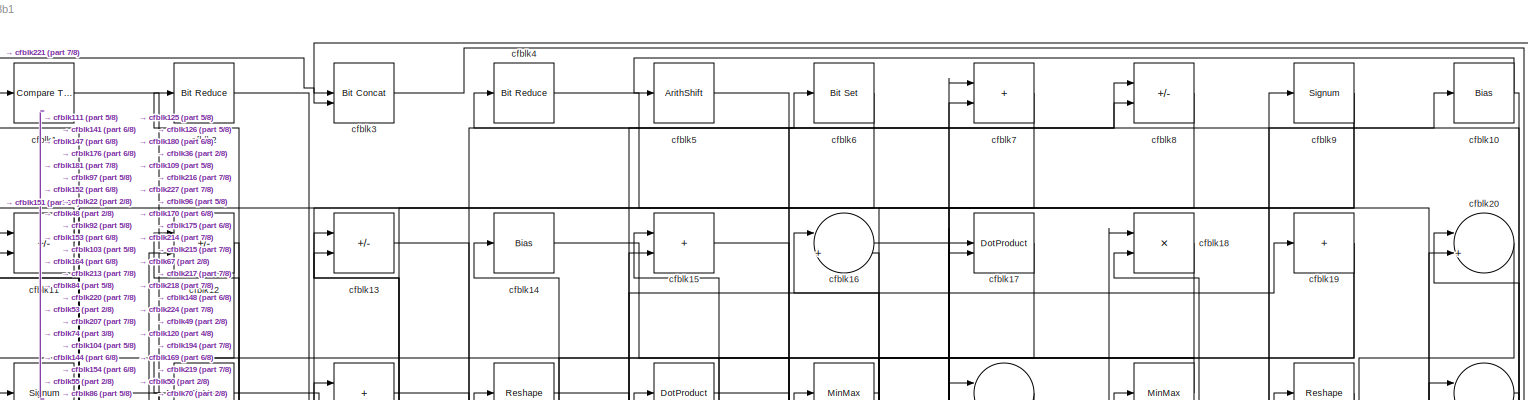
[diagram: root canvas - part 1/8, full width, top band]
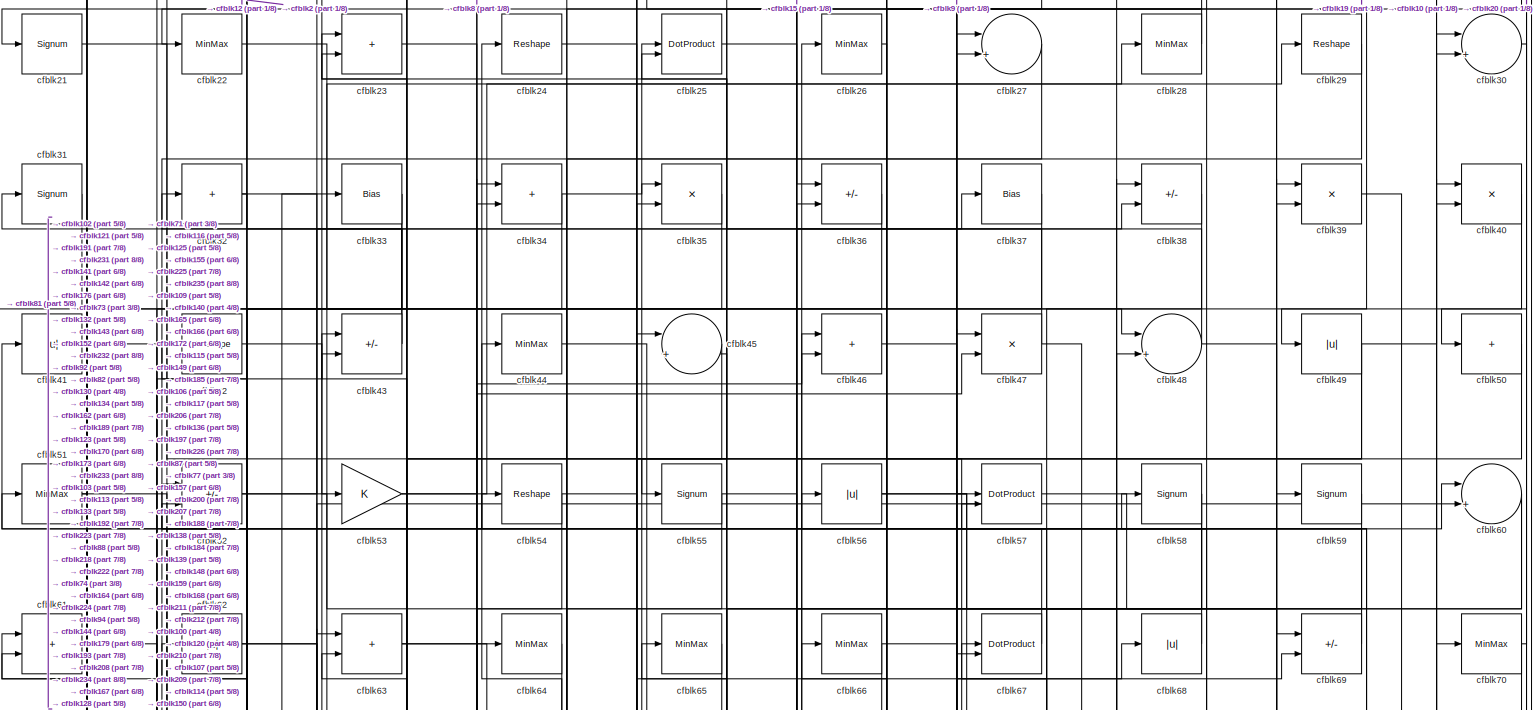
[diagram: root canvas - part 2/8, full width, top band]
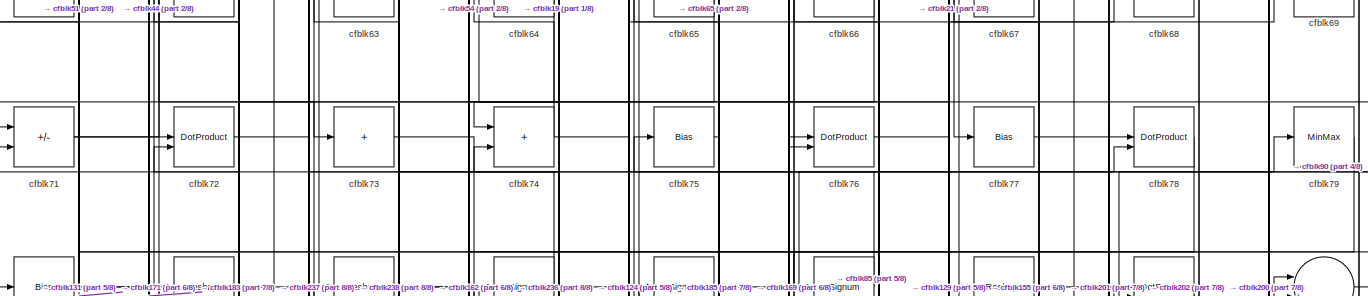
[diagram: root canvas - part 3/8, full width, top band]
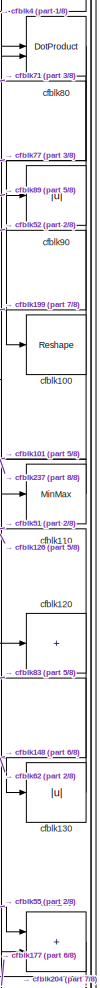
[diagram: root canvas - part 4/8, middle right region]
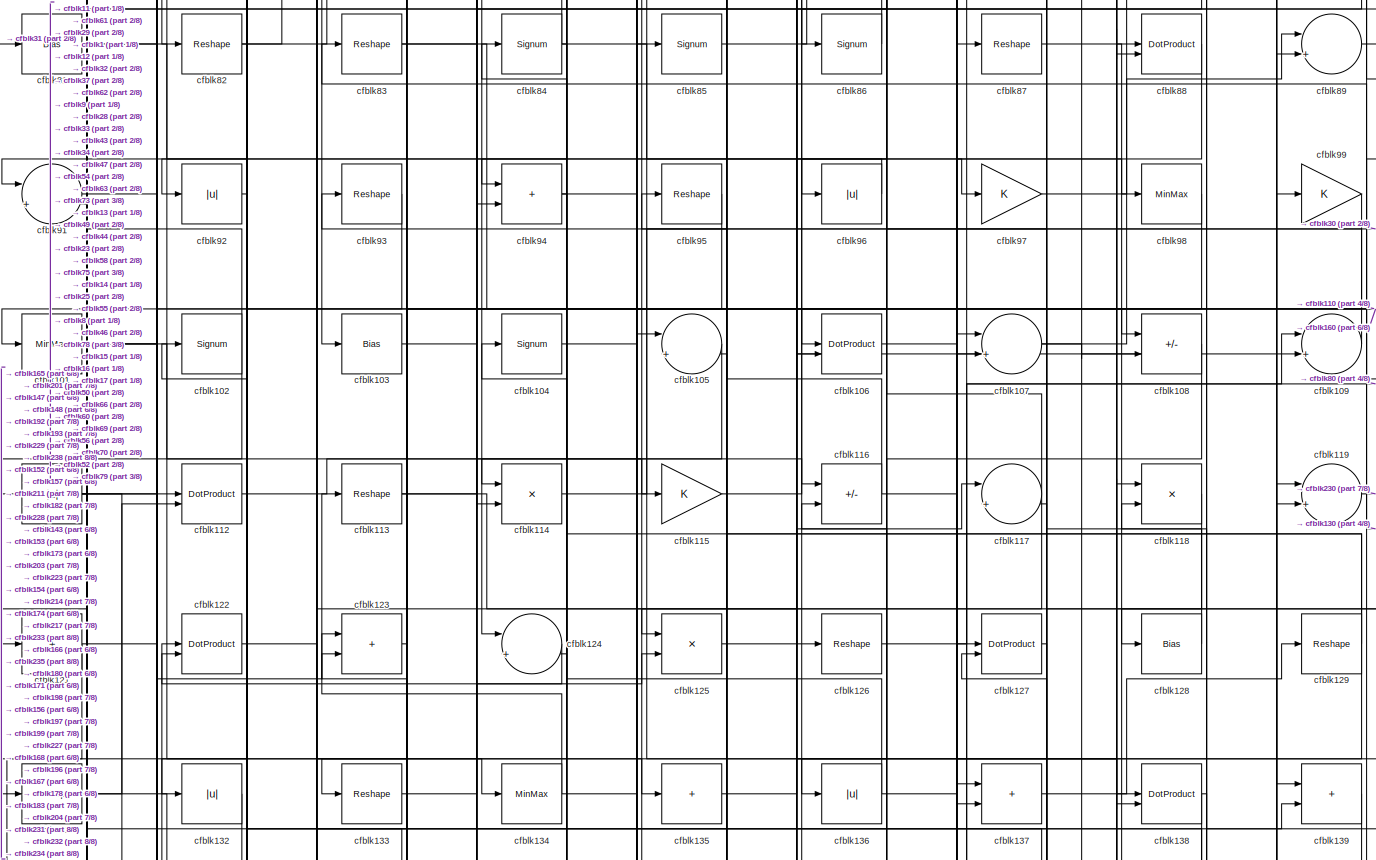
[diagram: root canvas - part 5/8, full width, middle band]
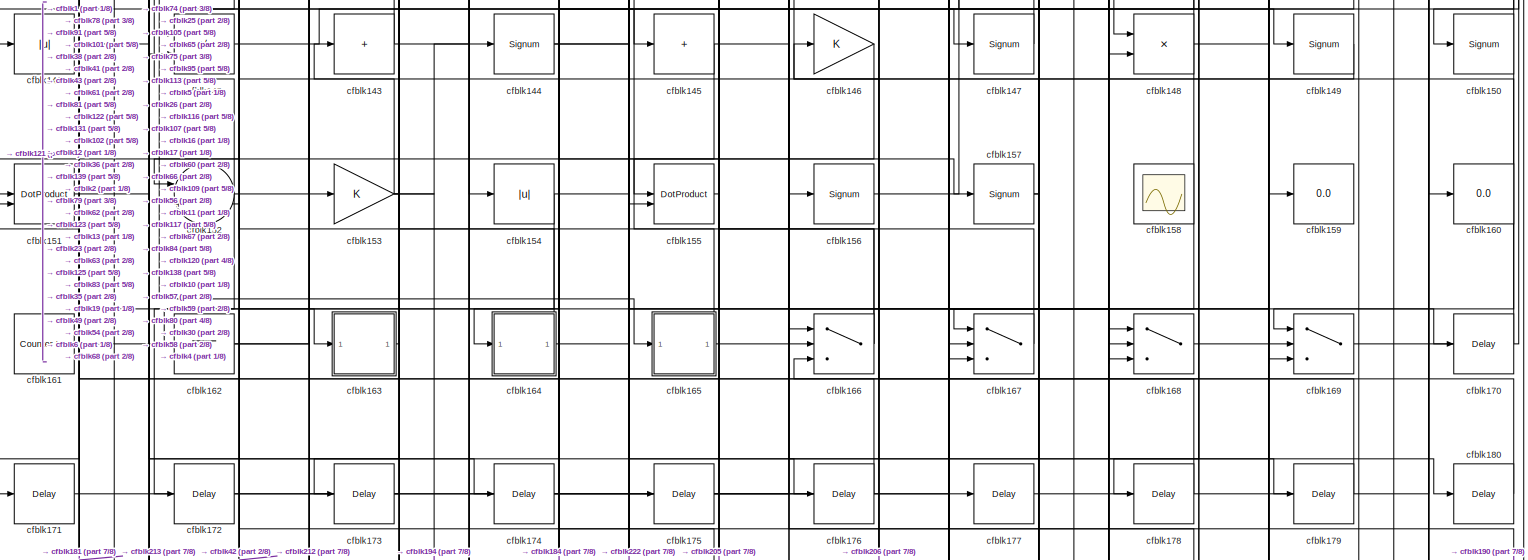
[diagram: root canvas - part 6/8, full width, bottom band]
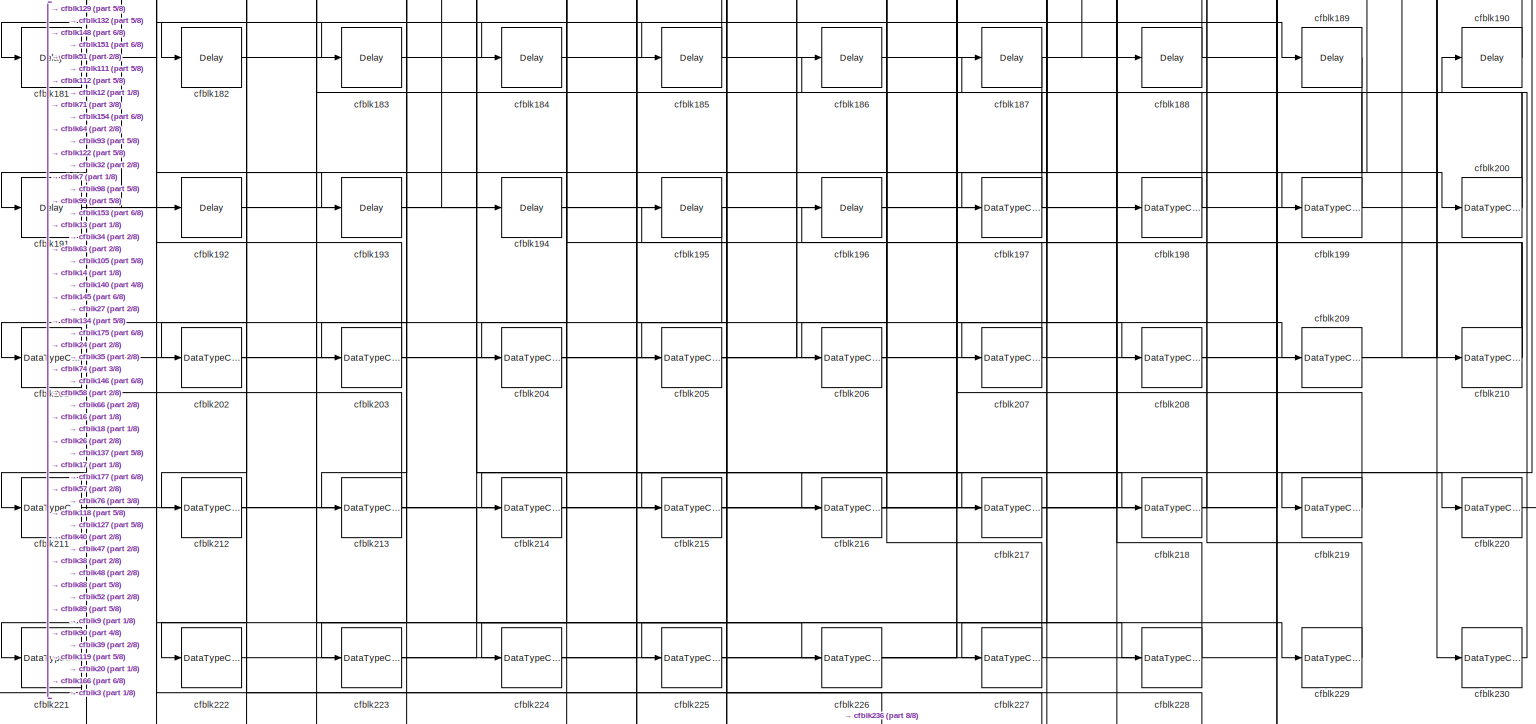
[diagram: root canvas - part 7/8, full width, bottom band]
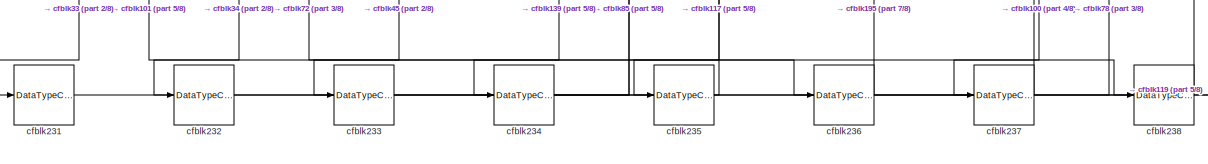
[diagram: root canvas - part 8/8, full width, bottom band]
MODEL slx_3759652f13b1
KIND model
CONFIG AbsTol = auto
CONFIG EnableMultiTasking = off
CONFIG FixedStep = auto
CONFIG MaxStep = auto
CONFIG MinStep = auto
CONFIG RelTol = 1e-3
CONFIG SampleTimeConstraint = Unconstrained
CONFIG SolverName = VariableStepAuto
CONFIG StartTime = 0.0
CONFIG StopTime = 10.0
BLOCK [Reference] cfblk1  REF=hdlsllib/Logic and Bit
Operations/Compare
To Constant
  SourceBlock = hdlsllib/Logic and Bit\nOperations/Compare\nTo Constant
  SourceType = Compare To Constant
BLOCK [Bias] cfblk10
  Bias = 0.0
  SaturateOnIntegerOverflow = off
BLOCK [Reshape] cfblk100
BLOCK [MinMax] cfblk101
BLOCK [Signum] cfblk102
BLOCK [Bias] cfblk103
  Bias = 0.0
  SaturateOnIntegerOverflow = off
BLOCK [Signum] cfblk104
BLOCK [Sum] cfblk105
  Inputs = |++
BLOCK [DotProduct] cfblk106
  OutDataTypeStr = Inherit: Inherit via internal rule
BLOCK [Sum] cfblk107
  Inputs = |++
BLOCK [Sum] cfblk108
  IconShape = rectangular
  Inputs = +-
BLOCK [Sum] cfblk109
  Inputs = |++
BLOCK [Sum] cfblk11
  IconShape = rectangular
  Inputs = +-
BLOCK [MinMax] cfblk110
BLOCK [Abs] cfblk111
  SaturateOnIntegerOverflow = off
BLOCK [DotProduct] cfblk112
  OutDataTypeStr = Inherit: Inherit via internal rule
BLOCK [Reshape] cfblk113
BLOCK [Product] cfblk114
  Inputs = */
  RndMeth = Zero
  SaturateOnIntegerOverflow = on
BLOCK [Gain] cfblk115
BLOCK [Sum] cfblk116
  IconShape = rectangular
  Inputs = +-
BLOCK [Sum] cfblk117
  Inputs = |++
BLOCK [Product] cfblk118
  Inputs = */
  RndMeth = Zero
  SaturateOnIntegerOverflow = on
BLOCK [Sum] cfblk119
  Inputs = |++
BLOCK [Sum] cfblk12
  IconShape = rectangular
  Inputs = +-
BLOCK [Sum] cfblk120
  IconShape = rectangular
  Inputs = +
BLOCK [Sum] cfblk121
  IconShape = rectangular
  Inputs = +
BLOCK [DotProduct] cfblk122
  OutDataTypeStr = Inherit: Inherit via internal rule
BLOCK [Sum] cfblk123
  IconShape = rectangular
BLOCK [Sum] cfblk124
  Inputs = |++
BLOCK [Product] cfblk125
  Inputs = */
  RndMeth = Zero
  SaturateOnIntegerOverflow = on
BLOCK [Reshape] cfblk126
BLOCK [DotProduct] cfblk127
  OutDataTypeStr = Inherit: Inherit via internal rule
BLOCK [Bias] cfblk128
  Bias = 0.0
  SaturateOnIntegerOverflow = off
BLOCK [Reshape] cfblk129
BLOCK [Sum] cfblk13
  IconShape = rectangular
  Inputs = +-
BLOCK [Abs] cfblk130
  SaturateOnIntegerOverflow = off
BLOCK [Reshape] cfblk131
BLOCK [Abs] cfblk132
  SaturateOnIntegerOverflow = off
BLOCK [Reshape] cfblk133
BLOCK [MinMax] cfblk134
BLOCK [Sum] cfblk135
  IconShape = rectangular
  Inputs = +
BLOCK [Abs] cfblk136
  SaturateOnIntegerOverflow = off
BLOCK [Sum] cfblk137
  IconShape = rectangular
BLOCK [DotProduct] cfblk138
  OutDataTypeStr = Inherit: Inherit via internal rule
BLOCK [Sum] cfblk139
  IconShape = rectangular
BLOCK [Bias] cfblk14
  Bias = 0.0
  SaturateOnIntegerOverflow = off
BLOCK [Sum] cfblk140
  IconShape = rectangular
BLOCK [Abs] cfblk141
  SaturateOnIntegerOverflow = off
BLOCK [Sum] cfblk142
  IconShape = rectangular
  Inputs = +-
BLOCK [Sum] cfblk143
  IconShape = rectangular
  Inputs = +
BLOCK [Signum] cfblk144
BLOCK [Sum] cfblk145
  IconShape = rectangular
  Inputs = +
BLOCK [Gain] cfblk146
BLOCK [Signum] cfblk147
BLOCK [Product] cfblk148
  Inputs = */
  RndMeth = Zero
  SaturateOnIntegerOverflow = on
BLOCK [Signum] cfblk149
BLOCK [Sum] cfblk15
  IconShape = rectangular
BLOCK [Signum] cfblk150
BLOCK [DotProduct] cfblk151
  OutDataTypeStr = Inherit: Inherit via internal rule
BLOCK [Sum] cfblk152
  Inputs = |++
BLOCK [Gain] cfblk153
BLOCK [Abs] cfblk154
  SaturateOnIntegerOverflow = off
BLOCK [DotProduct] cfblk155
  OutDataTypeStr = Inherit: Inherit via internal rule
BLOCK [Signum] cfblk156
BLOCK [Signum] cfblk157
BLOCK [Scope] cfblk158
  Floating = on
  NumInputPorts = 1
  ScopeSpecificationString = Simulink.scopes.TimeScopeBlockCfg('CurrentConfiguration', extmgr.ConfigurationSet(extmgr.Configuration('Core','General UI',true,'FigureColor',[0.156862745098039 0.156862745098039 0.156862745098039]),extmgr.Configuration('Core','Source UI',true),extmgr.Configuration('Sources','WiredSimulink',true,'DataLoggingVariableName','ScopeData1','DataLoggingSaveFormat','StructureWithTime','DataLoggingLimitDat...<+2713ch>
BLOCK [Display] cfblk159
  Decimation = 1
BLOCK [Sum] cfblk16
  Inputs = |++
BLOCK [Display] cfblk160
  Decimation = 1
BLOCK [Reference] cfblk161  REF=hdlsllib/Sources/Counter
Limited
  SourceBlock = hdlsllib/Sources/Counter\nLimited
  SourceType = Counter Limited
BLOCK [Ground] cfblk162
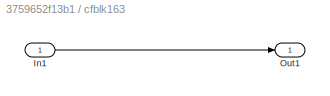
BLOCK [SubSystem] cfblk163
  LibrarySourceBlock = hdlsllib/Ports &\nSubsystems/Subsystem
BLOCK [Inport] cfblk163/In1
BLOCK [Outport] cfblk163/Out1
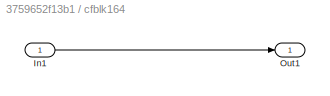
BLOCK [SubSystem] cfblk164
  LibrarySourceBlock = hdlsllib/Ports &\nSubsystems/Subsystem
BLOCK [Inport] cfblk164/In1
BLOCK [Outport] cfblk164/Out1
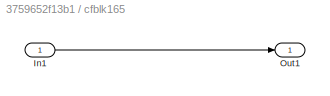
BLOCK [SubSystem] cfblk165
  LibrarySourceBlock = hdlsllib/Ports &\nSubsystems/Subsystem
BLOCK [Inport] cfblk165/In1
BLOCK [Outport] cfblk165/Out1
BLOCK [Switch] cfblk166
  InputSameDT = off
  SaturateOnIntegerOverflow = off
BLOCK [Switch] cfblk167
  InputSameDT = off
  SaturateOnIntegerOverflow = off
BLOCK [Switch] cfblk168
  InputSameDT = off
  SaturateOnIntegerOverflow = off
BLOCK [Switch] cfblk169
  InputSameDT = off
  SaturateOnIntegerOverflow = off
BLOCK [DotProduct] cfblk17
  OutDataTypeStr = Inherit: Inherit via internal rule
BLOCK [Delay] cfblk170
  InputPortMap = u0
  SampleTime = 1
BLOCK [Delay] cfblk171
  InputPortMap = u0
  SampleTime = 1
BLOCK [Delay] cfblk172
  InputPortMap = u0
  SampleTime = 1
BLOCK [Delay] cfblk173
  InputPortMap = u0
  SampleTime = 1
BLOCK [Delay] cfblk174
  InputPortMap = u0
  SampleTime = 1
BLOCK [Delay] cfblk175
  InputPortMap = u0
  SampleTime = 1
BLOCK [Delay] cfblk176
  InputPortMap = u0
  SampleTime = 1
BLOCK [Delay] cfblk177
  InputPortMap = u0
  SampleTime = 1
BLOCK [Delay] cfblk178
  InputPortMap = u0
  SampleTime = 1
BLOCK [Delay] cfblk179
  InputPortMap = u0
  SampleTime = 1
BLOCK [Product] cfblk18
  Inputs = */
  RndMeth = Zero
  SaturateOnIntegerOverflow = on
BLOCK [Delay] cfblk180
  InputPortMap = u0
  SampleTime = 1
BLOCK [Delay] cfblk181
  InputPortMap = u0
  SampleTime = 1
BLOCK [Delay] cfblk182
  InputPortMap = u0
  SampleTime = 1
BLOCK [Delay] cfblk183
  InputPortMap = u0
  SampleTime = 1
BLOCK [Delay] cfblk184
  InputPortMap = u0
  SampleTime = 1
BLOCK [Delay] cfblk185
  InputPortMap = u0
  SampleTime = 1
BLOCK [Delay] cfblk186
  InputPortMap = u0
  SampleTime = 1
BLOCK [Delay] cfblk187
  InputPortMap = u0
  SampleTime = 1
BLOCK [Delay] cfblk188
  InputPortMap = u0
  SampleTime = 1
BLOCK [Delay] cfblk189
  InputPortMap = u0
  SampleTime = 1
BLOCK [Sum] cfblk19
  IconShape = rectangular
  Inputs = +
BLOCK [Delay] cfblk190
  InputPortMap = u0
  SampleTime = 1
BLOCK [Delay] cfblk191
  InputPortMap = u0
  SampleTime = 1
BLOCK [Delay] cfblk192
  InputPortMap = u0
  SampleTime = 1
BLOCK [Delay] cfblk193
  InputPortMap = u0
  SampleTime = 1
BLOCK [Delay] cfblk194
  InputPortMap = u0
  SampleTime = 1
BLOCK [Delay] cfblk195
  InputPortMap = u0
  SampleTime = 1
BLOCK [Delay] cfblk196
  InputPortMap = u0
  SampleTime = 1
BLOCK [DataTypeConversion] cfblk197
  OutDataTypeStr = uint8
  RndMeth = Floor
  SaturateOnIntegerOverflow = off
BLOCK [DataTypeConversion] cfblk198
  OutDataTypeStr = uint8
  RndMeth = Floor
  SaturateOnIntegerOverflow = off
BLOCK [DataTypeConversion] cfblk199
  OutDataTypeStr = uint8
  RndMeth = Floor
  SaturateOnIntegerOverflow = off
BLOCK [Reference] cfblk2  REF=hdlsllib/Logic and Bit
Operations/Bit Reduce
  SourceBlock = hdlsllib/Logic and Bit\nOperations/Bit Reduce
  SourceType = Bit Reduce
BLOCK [Sum] cfblk20
  Inputs = |++
BLOCK [DataTypeConversion] cfblk200
  RndMeth = Floor
  SaturateOnIntegerOverflow = off
BLOCK [DataTypeConversion] cfblk201
  OutDataTypeStr = uint8
  RndMeth = Floor
  SaturateOnIntegerOverflow = off
BLOCK [DataTypeConversion] cfblk202
  OutDataTypeStr = uint8
  RndMeth = Floor
  SaturateOnIntegerOverflow = off
BLOCK [DataTypeConversion] cfblk203
  OutDataTypeStr = uint8
  RndMeth = Floor
  SaturateOnIntegerOverflow = off
BLOCK [DataTypeConversion] cfblk204
  OutDataTypeStr = uint8
  RndMeth = Floor
  SaturateOnIntegerOverflow = off
BLOCK [DataTypeConversion] cfblk205
  OutDataTypeStr = uint8
  RndMeth = Floor
  SaturateOnIntegerOverflow = off
BLOCK [DataTypeConversion] cfblk206
  OutDataTypeStr = uint8
  RndMeth = Floor
  SaturateOnIntegerOverflow = off
BLOCK [DataTypeConversion] cfblk207
  OutDataTypeStr = uint8
  RndMeth = Floor
  SaturateOnIntegerOverflow = off
BLOCK [DataTypeConversion] cfblk208
  OutDataTypeStr = uint8
  RndMeth = Floor
  SaturateOnIntegerOverflow = off
BLOCK [DataTypeConversion] cfblk209
  OutDataTypeStr = uint8
  RndMeth = Floor
  SaturateOnIntegerOverflow = off
BLOCK [Signum] cfblk21
BLOCK [DataTypeConversion] cfblk210
  RndMeth = Floor
  SaturateOnIntegerOverflow = off
BLOCK [DataTypeConversion] cfblk211
  OutDataTypeStr = uint8
  RndMeth = Floor
  SaturateOnIntegerOverflow = off
BLOCK [DataTypeConversion] cfblk212
  OutDataTypeStr = uint8
  RndMeth = Floor
  SaturateOnIntegerOverflow = off
BLOCK [DataTypeConversion] cfblk213
  RndMeth = Floor
  SaturateOnIntegerOverflow = off
BLOCK [DataTypeConversion] cfblk214
  OutDataTypeStr = uint8
  RndMeth = Floor
  SaturateOnIntegerOverflow = off
BLOCK [DataTypeConversion] cfblk215
  OutDataTypeStr = uint8
  RndMeth = Floor
  SaturateOnIntegerOverflow = off
BLOCK [DataTypeConversion] cfblk216
  RndMeth = Floor
  SaturateOnIntegerOverflow = off
BLOCK [DataTypeConversion] cfblk217
  OutDataTypeStr = uint8
  RndMeth = Floor
  SaturateOnIntegerOverflow = off
BLOCK [DataTypeConversion] cfblk218
  OutDataTypeStr = uint8
  RndMeth = Floor
  SaturateOnIntegerOverflow = off
BLOCK [DataTypeConversion] cfblk219
  OutDataTypeStr = uint8
  RndMeth = Floor
  SaturateOnIntegerOverflow = off
BLOCK [MinMax] cfblk22
BLOCK [DataTypeConversion] cfblk220
  OutDataTypeStr = uint8
  RndMeth = Floor
  SaturateOnIntegerOverflow = off
BLOCK [DataTypeConversion] cfblk221
  OutDataTypeStr = uint8
  RndMeth = Floor
  SaturateOnIntegerOverflow = off
BLOCK [DataTypeConversion] cfblk222
  OutDataTypeStr = uint8
  RndMeth = Floor
  SaturateOnIntegerOverflow = off
BLOCK [DataTypeConversion] cfblk223
  OutDataTypeStr = uint8
  RndMeth = Floor
  SaturateOnIntegerOverflow = off
BLOCK [DataTypeConversion] cfblk224
  OutDataTypeStr = uint8
  RndMeth = Floor
  SaturateOnIntegerOverflow = off
BLOCK [DataTypeConversion] cfblk225
  OutDataTypeStr = uint8
  RndMeth = Floor
  SaturateOnIntegerOverflow = off
BLOCK [DataTypeConversion] cfblk226
  OutDataTypeStr = uint8
  RndMeth = Floor
  SaturateOnIntegerOverflow = off
BLOCK [DataTypeConversion] cfblk227
  OutDataTypeStr = uint8
  RndMeth = Floor
  SaturateOnIntegerOverflow = off
BLOCK [DataTypeConversion] cfblk228
  OutDataTypeStr = uint8
  RndMeth = Floor
  SaturateOnIntegerOverflow = off
BLOCK [DataTypeConversion] cfblk229
  OutDataTypeStr = uint8
  RndMeth = Floor
  SaturateOnIntegerOverflow = off
BLOCK [Sum] cfblk23
  IconShape = rectangular
BLOCK [DataTypeConversion] cfblk230
  OutDataTypeStr = uint8
  RndMeth = Floor
  SaturateOnIntegerOverflow = off
BLOCK [DataTypeConversion] cfblk231
  OutDataTypeStr = uint8
  RndMeth = Floor
  SaturateOnIntegerOverflow = off
BLOCK [DataTypeConversion] cfblk232
  OutDataTypeStr = uint8
  RndMeth = Floor
  SaturateOnIntegerOverflow = off
BLOCK [DataTypeConversion] cfblk233
  OutDataTypeStr = uint8
  RndMeth = Floor
  SaturateOnIntegerOverflow = off
BLOCK [DataTypeConversion] cfblk234
  OutDataTypeStr = uint8
  RndMeth = Floor
  SaturateOnIntegerOverflow = off
BLOCK [DataTypeConversion] cfblk235
  OutDataTypeStr = uint8
  RndMeth = Floor
  SaturateOnIntegerOverflow = off
BLOCK [DataTypeConversion] cfblk236
  RndMeth = Floor
  SaturateOnIntegerOverflow = off
BLOCK [DataTypeConversion] cfblk237
  OutDataTypeStr = uint8
  RndMeth = Floor
  SaturateOnIntegerOverflow = off
BLOCK [DataTypeConversion] cfblk238
  OutDataTypeStr = uint8
  RndMeth = Floor
  SaturateOnIntegerOverflow = off
BLOCK [Reshape] cfblk24
BLOCK [DotProduct] cfblk25
  OutDataTypeStr = Inherit: Inherit via internal rule
BLOCK [MinMax] cfblk26
BLOCK [Sum] cfblk27
  Inputs = |++
BLOCK [MinMax] cfblk28
BLOCK [Reshape] cfblk29
BLOCK [Reference] cfblk3  REF=hdlsllib/Logic and Bit
Operations/Bit Concat
  SourceBlock = hdlsllib/Logic and Bit\nOperations/Bit Concat
  SourceType = Bit Concat
BLOCK [Sum] cfblk30
  Inputs = |++
BLOCK [Signum] cfblk31
BLOCK [Sum] cfblk32
  IconShape = rectangular
  Inputs = +
BLOCK [Bias] cfblk33
  Bias = 0.0
  SaturateOnIntegerOverflow = off
BLOCK [Sum] cfblk34
  IconShape = rectangular
BLOCK [Product] cfblk35
  Inputs = */
  RndMeth = Zero
  SaturateOnIntegerOverflow = on
BLOCK [Sum] cfblk36
  IconShape = rectangular
  Inputs = +-
BLOCK [Bias] cfblk37
  Bias = 0.0
  SaturateOnIntegerOverflow = off
BLOCK [Sum] cfblk38
  IconShape = rectangular
  Inputs = +-
BLOCK [Product] cfblk39
  Inputs = */
  RndMeth = Zero
  SaturateOnIntegerOverflow = on
BLOCK [Reference] cfblk4  REF=hdlsllib/Logic and Bit
Operations/Bit Reduce
  SourceBlock = hdlsllib/Logic and Bit\nOperations/Bit Reduce
  SourceType = Bit Reduce
BLOCK [Product] cfblk40
  Inputs = */
  RndMeth = Zero
  SaturateOnIntegerOverflow = on
BLOCK [Abs] cfblk41
  SaturateOnIntegerOverflow = off
BLOCK [Reshape] cfblk42
BLOCK [Sum] cfblk43
  IconShape = rectangular
  Inputs = +-
BLOCK [MinMax] cfblk44
BLOCK [Sum] cfblk45
  Inputs = |++
BLOCK [Sum] cfblk46
  IconShape = rectangular
BLOCK [Product] cfblk47
  Inputs = */
  RndMeth = Zero
  SaturateOnIntegerOverflow = on
BLOCK [Sum] cfblk48
  Inputs = |++
BLOCK [Abs] cfblk49
  SaturateOnIntegerOverflow = off
BLOCK [ArithShift] cfblk5
  BitShiftNumber = 8
  InputPortMap = u0
BLOCK [Sum] cfblk50
  IconShape = rectangular
  Inputs = +
BLOCK [MinMax] cfblk51
BLOCK [Sum] cfblk52
  IconShape = rectangular
  Inputs = +-
BLOCK [Gain] cfblk53
BLOCK [Reshape] cfblk54
BLOCK [Signum] cfblk55
BLOCK [Abs] cfblk56
  SaturateOnIntegerOverflow = off
BLOCK [DotProduct] cfblk57
  OutDataTypeStr = Inherit: Inherit via internal rule
BLOCK [Signum] cfblk58
BLOCK [Signum] cfblk59
BLOCK [Reference] cfblk6  REF=simulink/Logic and Bit
Operations/Bit Set
  LibrarySourceBlock = hdlsllib/Logic and Bit\nOperations/Bit Set
  SourceBlock = simulink/Logic and Bit\nOperations/Bit Set
  SourceType = Bit Set
BLOCK [Sum] cfblk60
  Inputs = |++
BLOCK [Sum] cfblk61
  IconShape = rectangular
BLOCK [Abs] cfblk62
  SaturateOnIntegerOverflow = off
BLOCK [Sum] cfblk63
  IconShape = rectangular
BLOCK [MinMax] cfblk64
BLOCK [MinMax] cfblk65
BLOCK [MinMax] cfblk66
BLOCK [DotProduct] cfblk67
  OutDataTypeStr = Inherit: Inherit via internal rule
BLOCK [Abs] cfblk68
  SaturateOnIntegerOverflow = off
BLOCK [Sum] cfblk69
  IconShape = rectangular
  Inputs = +-
BLOCK [Sum] cfblk7
  IconShape = rectangular
BLOCK [MinMax] cfblk70
BLOCK [Sum] cfblk71
  IconShape = rectangular
  Inputs = +-
BLOCK [DotProduct] cfblk72
  OutDataTypeStr = Inherit: Inherit via internal rule
BLOCK [Sum] cfblk73
  IconShape = rectangular
  Inputs = +
BLOCK [Sum] cfblk74
  IconShape = rectangular
BLOCK [Bias] cfblk75
  Bias = 0.0
  SaturateOnIntegerOverflow = off
BLOCK [DotProduct] cfblk76
  OutDataTypeStr = Inherit: Inherit via internal rule
BLOCK [Bias] cfblk77
  Bias = 0.0
  SaturateOnIntegerOverflow = off
BLOCK [DotProduct] cfblk78
  OutDataTypeStr = Inherit: Inherit via internal rule
BLOCK [MinMax] cfblk79
BLOCK [Sum] cfblk8
  IconShape = rectangular
  Inputs = +-
BLOCK [DotProduct] cfblk80
  OutDataTypeStr = Inherit: Inherit via internal rule
BLOCK [Bias] cfblk81
  Bias = 0.0
  SaturateOnIntegerOverflow = off
BLOCK [Reshape] cfblk82
BLOCK [Reshape] cfblk83
BLOCK [Signum] cfblk84
BLOCK [Signum] cfblk85
BLOCK [Signum] cfblk86
BLOCK [Reshape] cfblk87
BLOCK [DotProduct] cfblk88
  OutDataTypeStr = Inherit: Inherit via internal rule
BLOCK [Sum] cfblk89
  Inputs = |++
BLOCK [Signum] cfblk9
BLOCK [Abs] cfblk90
  SaturateOnIntegerOverflow = off
BLOCK [Sum] cfblk91
  Inputs = |++
BLOCK [Abs] cfblk92
  SaturateOnIntegerOverflow = off
BLOCK [Reshape] cfblk93
BLOCK [Sum] cfblk94
  IconShape = rectangular
BLOCK [Reshape] cfblk95
BLOCK [Abs] cfblk96
  SaturateOnIntegerOverflow = off
BLOCK [Gain] cfblk97
BLOCK [MinMax] cfblk98
BLOCK [Gain] cfblk99
NET cfblk100:1 -> cfblk237:1, cfblk52:1
NET cfblk101:1 -> cfblk116:1, cfblk148:2, cfblk238:1
NET cfblk102:1 -> cfblk111:1, cfblk61:1
LINE cfblk103:1 -> cfblk46:2
LINE cfblk104:1 -> cfblk15:2
LINE cfblk105:1 -> cfblk214:1
LINE cfblk106:1 -> cfblk69:2
NET cfblk107:1 -> cfblk108:2, cfblk70:1
LINE cfblk108:1 -> cfblk136:1
LINE cfblk109:1 -> cfblk16:2
NET cfblk10:1 -> cfblk50:1, cfblk5:1
LINE cfblk110:1 -> cfblk101:1
NET cfblk111:1 -> cfblk11:2, cfblk192:1, cfblk193:1, cfblk229:1
LINE cfblk112:1 -> cfblk115:1
NET cfblk113:1 -> cfblk156:1, cfblk47:2
LINE cfblk114:1 -> cfblk30:1
LINE cfblk115:1 -> cfblk46:1
NET cfblk116:1 -> cfblk138:2, cfblk23:1
NET cfblk117:1 -> cfblk235:1, cfblk66:1
LINE cfblk118:1 -> cfblk227:1
LINE cfblk119:1 -> cfblk230:1
LINE cfblk11:1 -> cfblk151:1
NET cfblk120:1 -> cfblk148:1, cfblk51:1
NET cfblk121:1 -> cfblk123:2, cfblk165:1
LINE cfblk122:1 -> cfblk228:1
LINE cfblk123:1 -> cfblk43:1
LINE cfblk124:1 -> cfblk122:2
LINE cfblk125:1 -> cfblk8:1
LINE cfblk126:1 -> cfblk80:2
LINE cfblk127:1 -> cfblk197:1
LINE cfblk128:1 -> cfblk93:1
NET cfblk129:1 -> cfblk201:1, cfblk75:1, cfblk84:1
NET cfblk12:1 -> cfblk152:2, cfblk22:1
LINE cfblk130:1 -> cfblk83:1
NET cfblk131:1 -> cfblk112:2, cfblk157:1
LINE cfblk132:1 -> cfblk211:1
LINE cfblk133:1 -> cfblk34:1
NET cfblk134:1 -> cfblk113:1, cfblk217:1
LINE cfblk135:1 -> cfblk117:1
NET cfblk136:1 -> cfblk104:1, cfblk60:1
LINE cfblk137:1 -> cfblk129:1
NET cfblk138:1 -> cfblk167:2, cfblk178:1
LINE cfblk139:1 -> cfblk234:1
LINE cfblk13:1 -> cfblk220:1
LINE cfblk140:1 -> cfblk204:1
LINE cfblk141:1 -> cfblk43:2
LINE cfblk142:1 -> cfblk145:1
NET cfblk143:1 -> cfblk125:2, cfblk62:1
NET cfblk144:1 -> cfblk19:1, cfblk68:1
NET cfblk145:1 -> cfblk168:2, cfblk184:1
LINE cfblk146:1 -> cfblk205:1
LINE cfblk147:1 -> cfblk11:1
NET cfblk148:1 -> cfblk10:1, cfblk181:1, cfblk42:1
LINE cfblk149:1 -> cfblk26:1
LINE cfblk14:1 -> cfblk126:1
NET cfblk150:1 -> cfblk169:1, cfblk58:1
LINE cfblk151:1 -> cfblk174:1
NET cfblk152:1 -> cfblk122:1, cfblk139:2, cfblk172:1
NET cfblk153:1 -> cfblk102:1, cfblk123:1, cfblk144:1, cfblk194:1
NET cfblk154:1 -> cfblk212:1, cfblk6:1
LINE cfblk155:1 -> cfblk65:1
LINE cfblk156:1 -> cfblk109:1
NET cfblk157:1 -> cfblk117:2, cfblk67:1
LINE cfblk15:1 -> cfblk36:1
LINE cfblk161:1 -> cfblk163:1
NET cfblk162:1 -> cfblk60:2, cfblk79:1
LINE cfblk163/In1:1 -> cfblk163/Out1:1
LINE cfblk163:1 -> cfblk143:1
LINE cfblk164/In1:1 -> cfblk164/Out1:1
NET cfblk164:1 -> cfblk13:1, cfblk169:2
LINE cfblk165/In1:1 -> cfblk165/Out1:1
NET cfblk165:1 -> cfblk38:2, cfblk61:2
NET cfblk166:1 -> cfblk105:2, cfblk95:1
LINE cfblk167:1 -> cfblk25:1
LINE cfblk168:1 -> cfblk59:1
LINE cfblk169:1 -> cfblk4:1
LINE cfblk16:1 -> cfblk170:1
LINE cfblk170:1 -> cfblk23:2
LINE cfblk171:1 -> cfblk107:1
LINE cfblk172:1 -> cfblk36:2
LINE cfblk173:1 -> cfblk63:2
LINE cfblk174:1 -> cfblk105:1
LINE cfblk175:1 -> cfblk17:2
LINE cfblk176:1 -> cfblk1:1
LINE cfblk177:1 -> cfblk80:1
LINE cfblk178:1 -> cfblk91:2
LINE cfblk179:1 -> cfblk166:3
LINE cfblk17:1 -> cfblk96:1
LINE cfblk180:1 -> cfblk116:2
LINE cfblk181:1 -> cfblk12:2
LINE cfblk182:1 -> cfblk137:1
LINE cfblk183:1 -> cfblk89:2
LINE cfblk184:1 -> cfblk38:1
LINE cfblk185:1 -> cfblk74:2
LINE cfblk186:1 -> cfblk209:1
LINE cfblk187:1 -> cfblk202:1
LINE cfblk188:1 -> cfblk52:2
LINE cfblk189:1 -> cfblk215:1
LINE cfblk18:1 -> cfblk216:1
LINE cfblk190:1 -> cfblk166:1
LINE cfblk191:1 -> cfblk48:2
LINE cfblk192:1 -> cfblk34:2
LINE cfblk193:1 -> cfblk35:2
LINE cfblk194:1 -> cfblk20:2
LINE cfblk195:1 -> cfblk221:1
LINE cfblk196:1 -> cfblk88:1
LINE cfblk197:1 -> cfblk57:1
LINE cfblk198:1 -> cfblk127:1
LINE cfblk199:1 -> cfblk127:2
NET cfblk19:1 -> cfblk55:1, cfblk74:1
LINE cfblk1:1 -> cfblk97:1
NET cfblk200:1 -> cfblk57:2, cfblk63:1
LINE cfblk201:1 -> cfblk76:1
LINE cfblk202:1 -> cfblk76:2
LINE cfblk203:1 -> cfblk112:1
LINE cfblk204:1 -> cfblk99:1
LINE cfblk205:1 -> cfblk177:1
LINE cfblk206:1 -> cfblk146:1
LINE cfblk207:1 -> cfblk14:1
LINE cfblk208:1 -> cfblk40:1
LINE cfblk209:1 -> cfblk40:2
LINE cfblk20:1 -> cfblk49:1
NET cfblk210:1 -> cfblk186:1, cfblk187:1, cfblk47:1
LINE cfblk211:1 -> cfblk39:1
LINE cfblk212:1 -> cfblk39:2
NET cfblk213:1 -> cfblk151:2, cfblk226:1
LINE cfblk214:1 -> cfblk7:1
LINE cfblk215:1 -> cfblk7:2
NET cfblk216:1 -> cfblk196:1, cfblk198:1
LINE cfblk217:1 -> cfblk18:1
LINE cfblk218:1 -> cfblk18:2
LINE cfblk219:1 -> cfblk17:1
LINE cfblk21:1 -> cfblk77:1
LINE cfblk220:1 -> cfblk3:1
LINE cfblk221:1 -> cfblk3:2
LINE cfblk222:1 -> cfblk175:1
LINE cfblk223:1 -> cfblk64:1
LINE cfblk224:1 -> cfblk9:1
LINE cfblk225:1 -> cfblk27:1
LINE cfblk226:1 -> cfblk27:2
LINE cfblk227:1 -> cfblk16:1
LINE cfblk228:1 -> cfblk118:1
LINE cfblk229:1 -> cfblk118:2
LINE cfblk22:1 -> cfblk48:1
LINE cfblk230:1 -> cfblk190:1
LINE cfblk231:1 -> cfblk119:1
LINE cfblk232:1 -> cfblk119:2
LINE cfblk233:1 -> cfblk85:1
LINE cfblk234:1 -> cfblk45:1
LINE cfblk235:1 -> cfblk45:2
NET cfblk236:1 -> cfblk195:1, cfblk78:1
LINE cfblk237:1 -> cfblk72:1
LINE cfblk238:1 -> cfblk72:2
LINE cfblk23:1 -> cfblk88:2
LINE cfblk24:1 -> cfblk208:1
LINE cfblk25:1 -> cfblk109:2
LINE cfblk26:1 -> cfblk206:1
LINE cfblk27:1 -> cfblk224:1
LINE cfblk28:1 -> cfblk21:1
LINE cfblk29:1 -> cfblk82:1
LINE cfblk2:1 -> cfblk153:1
LINE cfblk30:1 -> cfblk150:1
LINE cfblk31:1 -> cfblk81:1
NET cfblk32:1 -> cfblk132:1, cfblk189:1
NET cfblk33:1 -> cfblk121:1, cfblk231:1
NET cfblk34:1 -> cfblk232:1, cfblk35:1
LINE cfblk35:1 -> cfblk164:1
LINE cfblk36:1 -> cfblk152:1
LINE cfblk37:1 -> cfblk92:1
LINE cfblk38:1 -> cfblk142:2
LINE cfblk39:1 -> cfblk210:1
LINE cfblk3:1 -> cfblk219:1
LINE cfblk40:1 -> cfblk207:1
LINE cfblk41:1 -> cfblk176:1
LINE cfblk42:1 -> cfblk53:1
NET cfblk43:1 -> cfblk31:1, cfblk32:1
LINE cfblk44:1 -> cfblk128:1
LINE cfblk45:1 -> cfblk233:1
LINE cfblk46:1 -> cfblk87:1
NET cfblk47:1 -> cfblk188:1, cfblk25:2
NET cfblk48:1 -> cfblk2:1, cfblk69:1
NET cfblk49:1 -> cfblk133:1, cfblk155:2, cfblk30:2
LINE cfblk4:1 -> cfblk120:1
LINE cfblk50:1 -> cfblk106:1
NET cfblk51:1 -> cfblk191:1, cfblk73:1
NET cfblk52:1 -> cfblk139:1, cfblk37:1
NET cfblk53:1 -> cfblk29:1, cfblk8:2
NET cfblk54:1 -> cfblk179:1, cfblk94:2
NET cfblk55:1 -> cfblk140:1, cfblk94:1
NET cfblk56:1 -> cfblk138:1, cfblk149:1
LINE cfblk57:1 -> cfblk159:1
NET cfblk58:1 -> cfblk125:1, cfblk225:1
LINE cfblk59:1 -> cfblk167:1
LINE cfblk5:1 -> cfblk180:1
NET cfblk60:1 -> cfblk166:2, cfblk167:3
LINE cfblk61:1 -> cfblk142:1
NET cfblk62:1 -> cfblk130:1, cfblk134:1
NET cfblk63:1 -> cfblk107:2, cfblk218:1
LINE cfblk64:1 -> cfblk222:1
LINE cfblk65:1 -> cfblk71:1
NET cfblk66:1 -> cfblk168:3, cfblk185:1
LINE cfblk67:1 -> cfblk24:1
LINE cfblk68:1 -> cfblk56:1
LINE cfblk69:1 -> cfblk41:1
LINE cfblk6:1 -> cfblk141:1
NET cfblk70:1 -> cfblk114:2, cfblk20:1
NET cfblk71:1 -> cfblk183:1, cfblk44:1
LINE cfblk72:1 -> cfblk236:1
LINE cfblk73:1 -> cfblk124:1
NET cfblk74:1 -> cfblk169:3, cfblk54:1
LINE cfblk75:1 -> cfblk155:1
LINE cfblk76:1 -> cfblk200:1
LINE cfblk77:1 -> cfblk90:1
LINE cfblk78:1 -> cfblk171:1
LINE cfblk79:1 -> cfblk131:1
LINE cfblk7:1 -> cfblk213:1
NET cfblk80:1 -> cfblk100:1, cfblk140:2
NET cfblk81:1 -> cfblk135:1, cfblk147:1
NET cfblk82:1 -> cfblk28:1, cfblk33:1
NET cfblk83:1 -> cfblk154:1, cfblk160:1
NET cfblk84:1 -> cfblk114:1, cfblk13:2, cfblk168:1
LINE cfblk85:1 -> cfblk78:2
LINE cfblk86:1 -> cfblk15:1
LINE cfblk87:1 -> cfblk98:1
LINE cfblk88:1 -> cfblk137:2
LINE cfblk89:1 -> cfblk110:1
LINE cfblk8:1 -> cfblk86:1
NET cfblk90:1 -> cfblk199:1, cfblk71:2
LINE cfblk91:1 -> cfblk108:1
LINE cfblk92:1 -> cfblk12:1
LINE cfblk93:1 -> cfblk182:1
NET cfblk94:1 -> cfblk106:2, cfblk124:2
LINE cfblk95:1 -> cfblk173:1
LINE cfblk96:1 -> cfblk91:1
LINE cfblk97:1 -> cfblk89:1
LINE cfblk98:1 -> cfblk223:1
LINE cfblk99:1 -> cfblk203:1
NET cfblk9:1 -> cfblk103:1, cfblk67:2
note: NET lines group one-source signal fan-out (src -> all destinations, sorted); 1:1 wires keep LINE
